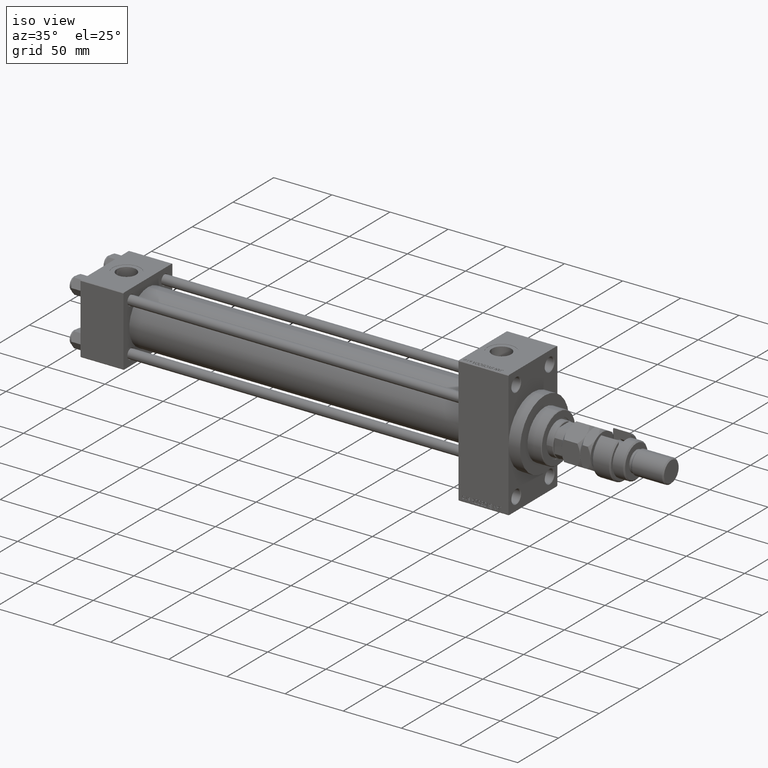
[diagram: clean part render]
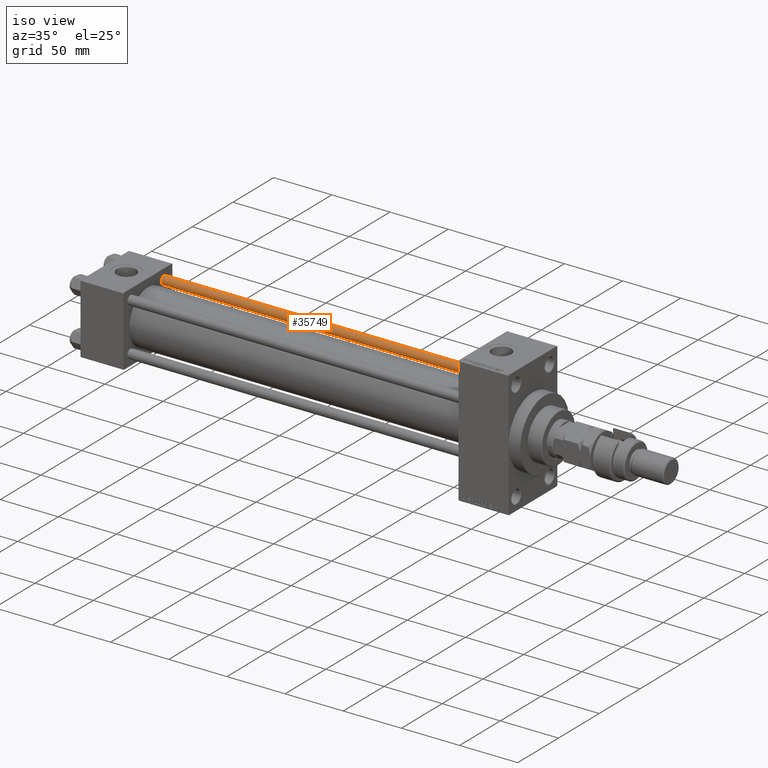
[diagram: same view with one face highlighted and labeled with its STEP entity id]
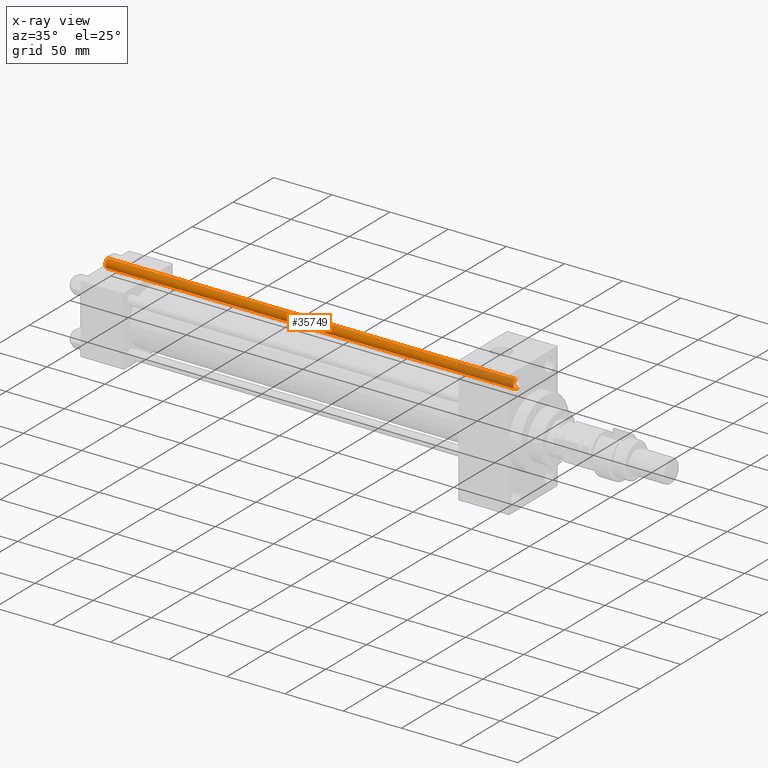
[diagram: x-ray of the same camera — body ghosted, the highlighted face saturated]
A machine part, iso view. The second image highlights one B-rep face of the part: STEP entity #35749.
The next image is the same camera in x-ray: the body ghosted, the highlighted face saturated — about 13% of this face is hidden behind the body in this view.
In plain terms, the highlighted cylindrical surface (edge-blend (fillet) strip) has radius 4 mm, axis along (-1, -0, 0).
Its self-contained STEP definition (entity closure, byte-faithful):
#489 = DIRECTION ( 'NONE',  ( -0.000000000000000000, -0.000000000000000000, 1.000000000000000000 ) ) ;
#536 = ORIENTED_EDGE ( 'NONE', *, *, #33742, .T. ) ;
#1414 = CARTESIAN_POINT ( 'NONE',  ( 0.000000000000000000, 0.000000000000000000, 352.0000000000000000 ) ) ;
#2007 = CARTESIAN_POINT ( 'NONE',  ( 0.000000000000000000, 0.000000000000000000, 351.5000000000000000 ) ) ;
#2224 = CARTESIAN_POINT ( 'NONE',  ( -4.000000000000000000, 0.000000000000000000, 351.5000000000000000 ) ) ;
#2761 = CARTESIAN_POINT ( 'NONE',  ( 4.000000000000000000, 4.898587196589412829E-16, 352.0000000000000000 ) ) ;
#3024 = VECTOR ( 'NONE', #23066, 1000.000000000000000 ) ;
#4430 = VERTEX_POINT ( 'NONE', #2224 ) ;
#6718 = CARTESIAN_POINT ( 'NONE',  ( -4.000000000000000000, 0.000000000000000000, 352.0000000000000000 ) ) ;
#7912 = CIRCLE ( 'NONE', #40745, 4.000000000000000000 ) ;
#9815 = ORIENTED_EDGE ( 'NONE', *, *, #29163, .T. ) ;
#9829 = DIRECTION ( 'NONE',  ( -0.000000000000000000, -0.000000000000000000, -1.000000000000000000 ) ) ;
#13015 = EDGE_CURVE ( 'NONE', #38023, #26628, #32744, .T. ) ;
#13356 = CARTESIAN_POINT ( 'NONE',  ( -4.000000000000000000, 0.000000000000000000, 0.5000000000000004441 ) ) ;
#14635 = LINE ( 'NONE', #6718, #3024 ) ;
#16040 = CARTESIAN_POINT ( 'NONE',  ( 0.000000000000000000, 0.000000000000000000, 0.5000000000000004441 ) ) ;
#17814 = DIRECTION ( 'NONE',  ( 0.000000000000000000, 0.000000000000000000, -1.000000000000000000 ) ) ;
#17998 = DIRECTION ( 'NONE',  ( -1.000000000000000000, 0.000000000000000000, 0.000000000000000000 ) ) ;
#18072 = DIRECTION ( 'NONE',  ( 1.000000000000000000, 0.000000000000000000, 0.000000000000000000 ) ) ;
#18824 = DIRECTION ( 'NONE',  ( -0.000000000000000000, -0.000000000000000000, -1.000000000000000000 ) ) ;
#20979 = AXIS2_PLACEMENT_3D ( 'NONE', #16040, #489, #28401 ) ;
#21617 = CARTESIAN_POINT ( 'NONE',  ( 4.000000000000000000, 4.898587196589412829E-16, 351.5000000000000000 ) ) ;
#22400 = CARTESIAN_POINT ( 'NONE',  ( 4.000000000000000000, 4.898587196589412829E-16, 0.5000000000000004441 ) ) ;
#23066 = DIRECTION ( 'NONE',  ( -0.000000000000000000, -0.000000000000000000, -1.000000000000000000 ) ) ;
#23159 = EDGE_CURVE ( 'NONE', #31323, #26628, #38842, .T. ) ;
#26628 = VERTEX_POINT ( 'NONE', #22400 ) ;
#28401 = DIRECTION ( 'NONE',  ( 1.000000000000000000, 0.000000000000000000, 0.000000000000000000 ) ) ;
#28529 = ORIENTED_EDGE ( 'NONE', *, *, #13015, .T. ) ;
#29163 = EDGE_CURVE ( 'NONE', #31323, #4430, #7912, .T. ) ;
#31323 = VERTEX_POINT ( 'NONE', #21617 ) ;
#32744 = CIRCLE ( 'NONE', #20979, 4.000000000000000000 ) ;
#33742 = EDGE_CURVE ( 'NONE', #4430, #38023, #14635, .T. ) ;
#35749 = ADVANCED_FACE ( 'NONE', ( #45680 ), #37495, .T. ) ;
#37495 = CYLINDRICAL_SURFACE ( 'NONE', #50247, 4.000000000000000000 ) ;
#38023 = VERTEX_POINT ( 'NONE', #13356 ) ;
#38842 = LINE ( 'NONE', #2761, #44859 ) ;
#40186 = ORIENTED_EDGE ( 'NONE', *, *, #23159, .F. ) ;
#40745 = AXIS2_PLACEMENT_3D ( 'NONE', #2007, #17814, #18072 ) ;
#44859 = VECTOR ( 'NONE', #18824, 1000.000000000000000 ) ;
#45680 = FACE_OUTER_BOUND ( 'NONE', #49619, .T. ) ;
#49619 = EDGE_LOOP ( 'NONE', ( #40186, #9815, #536, #28529 ) ) ;
#50247 = AXIS2_PLACEMENT_3D ( 'NONE', #1414, #9829, #17998 ) ;